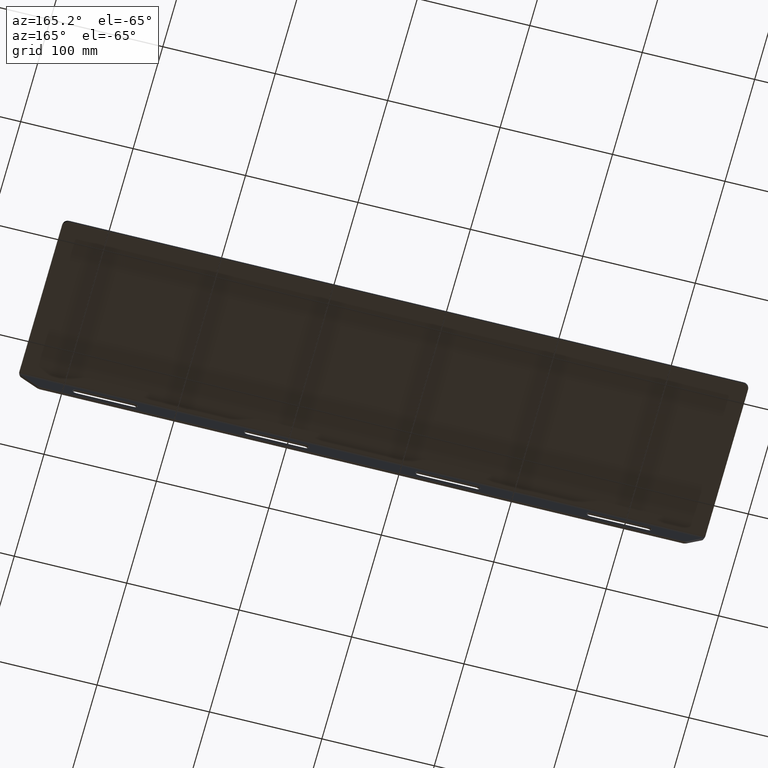
[diagram: clean part render]
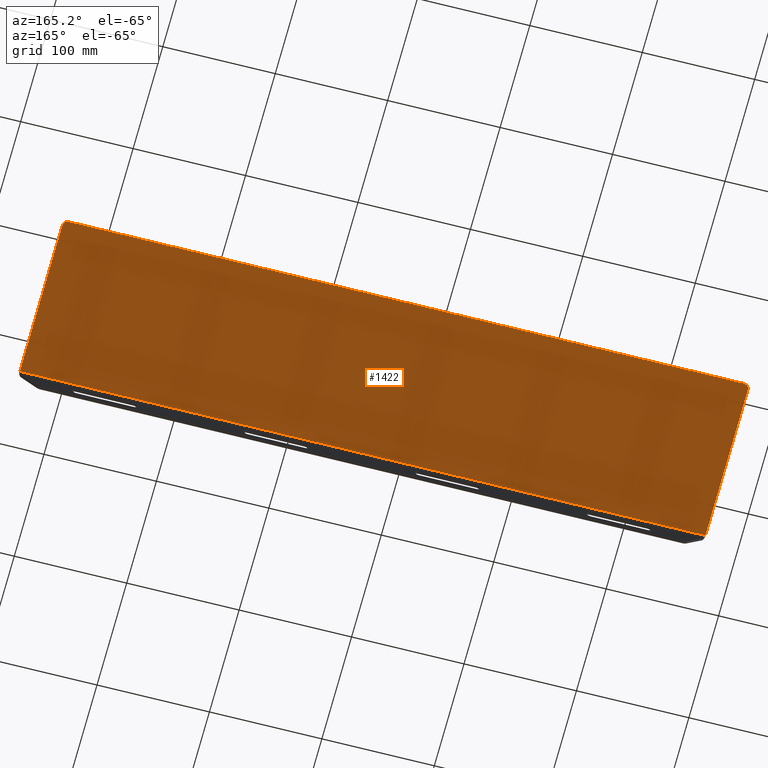
[diagram: same view with one face highlighted and labeled with its STEP entity id]
A machine part, auxiliary view. The second image highlights one B-rep face of the part: STEP entity #1422.
In plain terms, the highlighted planar face has unit normal (-0, 0, -1).
Its self-contained STEP definition (entity closure, byte-faithful):
#97 = VERTEX_POINT ( 'NONE', #181 ) ;
#118 = AXIS2_PLACEMENT_3D ( 'NONE', #274, #812, #1154 ) ;
#181 = CARTESIAN_POINT ( 'NONE',  ( -72.96811685823823268, 258.4215033607173382, 465.0621721913454962 ) ) ;
#185 = DIRECTION ( 'NONE',  ( 0.000000000000000000, -1.000000000000000000, 0.000000000000000000 ) ) ;
#189 = VECTOR ( 'NONE', #185, 1000.000000000000000 ) ;
#206 = VERTEX_POINT ( 'NONE', #627 ) ;
#271 = VERTEX_POINT ( 'NONE', #1378 ) ;
#274 = CARTESIAN_POINT ( 'NONE',  ( 536.8318831417617503, 254.4215033607171108, 465.0621721913454962 ) ) ;
#305 = CARTESIAN_POINT ( 'NONE',  ( -72.96811685823823268, 254.4215033607171108, 465.0621721913454962 ) ) ;
#326 = VECTOR ( 'NONE', #551, 1000.000000000000000 ) ;
#339 = VERTEX_POINT ( 'NONE', #711 ) ;
#342 = CARTESIAN_POINT ( 'NONE',  ( 532.0318831417617957, 401.4215033607169971, 465.0621721913454962 ) ) ;
#404 = EDGE_CURVE ( 'NONE', #1119, #97, #1402, .T. ) ;
#410 = ORIENTED_EDGE ( 'NONE', *, *, #522, .F. ) ;
#422 = EDGE_LOOP ( 'NONE', ( #410, #1418, #677, #562, #966, #584 ) ) ;
#436 = DIRECTION ( 'NONE',  ( 0.000000000000000000, 1.000000000000000000, 0.000000000000000000 ) ) ;
#488 = CARTESIAN_POINT ( 'NONE',  ( 537.0318831417617957, 258.4215033607173382, 465.0621721913454962 ) ) ;
#489 = VECTOR ( 'NONE', #724, 1000.000000000000000 ) ;
#502 = CARTESIAN_POINT ( 'NONE',  ( -67.96811685823826110, 401.4215033607169971, 465.0621721913454962 ) ) ;
#510 = CARTESIAN_POINT ( 'NONE',  ( 536.8318831417617503, 406.4215033607170540, 465.0621721913454962 ) ) ;
#522 = EDGE_CURVE ( 'NONE', #990, #206, #860, .T. ) ;
#543 = EDGE_CURVE ( 'NONE', #990, #97, #1321, .T. ) ;
#551 = DIRECTION ( 'NONE',  ( -1.000000000000000000, -0.000000000000000000, -0.000000000000000000 ) ) ;
#562 = ORIENTED_EDGE ( 'NONE', *, *, #1228, .F. ) ;
#584 = ORIENTED_EDGE ( 'NONE', *, *, #678, .F. ) ;
#627 = CARTESIAN_POINT ( 'NONE',  ( 537.0318831417617957, 401.4215033607169971, 465.0621721913454962 ) ) ;
#668 = AXIS2_PLACEMENT_3D ( 'NONE', #502, #1284, #1397 ) ;
#672 = CIRCLE ( 'NONE', #1322, 5.000000000000004441 ) ;
#677 = ORIENTED_EDGE ( 'NONE', *, *, #404, .F. ) ;
#678 = EDGE_CURVE ( 'NONE', #206, #339, #672, .T. ) ;
#711 = CARTESIAN_POINT ( 'NONE',  ( 532.0318831417617957, 406.4215033607170540, 465.0621721913454962 ) ) ;
#724 = DIRECTION ( 'NONE',  ( -1.000000000000000000, 0.000000000000000000, 0.000000000000000000 ) ) ;
#780 = DIRECTION ( 'NONE',  ( 0.000000000000000000, 0.000000000000000000, 1.000000000000000000 ) ) ;
#812 = DIRECTION ( 'NONE',  ( -0.000000000000000000, 0.000000000000000000, -1.000000000000000000 ) ) ;
#860 = LINE ( 'NONE', #1313, #1394 ) ;
#866 = CARTESIAN_POINT ( 'NONE',  ( 536.8318831417617503, 258.4215033607171108, 465.0621721913454962 ) ) ;
#888 = CARTESIAN_POINT ( 'NONE',  ( -72.96811685823823268, 401.4215033607169403, 465.0621721913454962 ) ) ;
#914 = DIRECTION ( 'NONE',  ( -1.000000000000000000, 0.000000000000000000, 0.000000000000000000 ) ) ;
#948 = LINE ( 'NONE', #510, #489 ) ;
#966 = ORIENTED_EDGE ( 'NONE', *, *, #1181, .F. ) ;
#990 = VERTEX_POINT ( 'NONE', #488 ) ;
#1031 = PLANE ( 'NONE',  #118 ) ;
#1119 = VERTEX_POINT ( 'NONE', #888 ) ;
#1154 = DIRECTION ( 'NONE',  ( -1.000000000000000000, 0.000000000000000000, 0.000000000000000000 ) ) ;
#1181 = EDGE_CURVE ( 'NONE', #339, #271, #948, .T. ) ;
#1228 = EDGE_CURVE ( 'NONE', #271, #1119, #1293, .T. ) ;
#1284 = DIRECTION ( 'NONE',  ( 0.000000000000000000, 0.000000000000000000, 1.000000000000000000 ) ) ;
#1293 = CIRCLE ( 'NONE', #668, 5.000000000000004441 ) ;
#1313 = CARTESIAN_POINT ( 'NONE',  ( 537.0318831417617957, 254.4215033607171108, 465.0621721913454962 ) ) ;
#1314 = FACE_OUTER_BOUND ( 'NONE', #422, .T. ) ;
#1321 = LINE ( 'NONE', #866, #326 ) ;
#1322 = AXIS2_PLACEMENT_3D ( 'NONE', #342, #780, #914 ) ;
#1378 = CARTESIAN_POINT ( 'NONE',  ( -67.96811685823823268, 406.4215033607170540, 465.0621721913454962 ) ) ;
#1394 = VECTOR ( 'NONE', #436, 1000.000000000000000 ) ;
#1397 = DIRECTION ( 'NONE',  ( -1.000000000000000000, 6.661338147750932932E-14, 0.000000000000000000 ) ) ;
#1402 = LINE ( 'NONE', #305, #189 ) ;
#1418 = ORIENTED_EDGE ( 'NONE', *, *, #543, .T. ) ;
#1422 = ADVANCED_FACE ( 'NONE', ( #1314 ), #1031, .T. ) ;